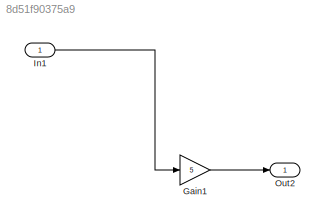
MODEL slx_8d51f90375a9
KIND model
BLOCK [Gain] Gain1
  Gain = 5
  OutDataTypeStr = Inherit: Inherit via internal rule
  ParamDataTypeStr = Inherit: Inherit via internal rule
  SaturateOnIntegerOverflow = off
BLOCK [Inport] In1
  IconDisplay = Port number
BLOCK [Outport] Out2
  IconDisplay = Port number
LINE Gain1:1 -> Out2:1
LINE In1:1 -> Gain1:1
